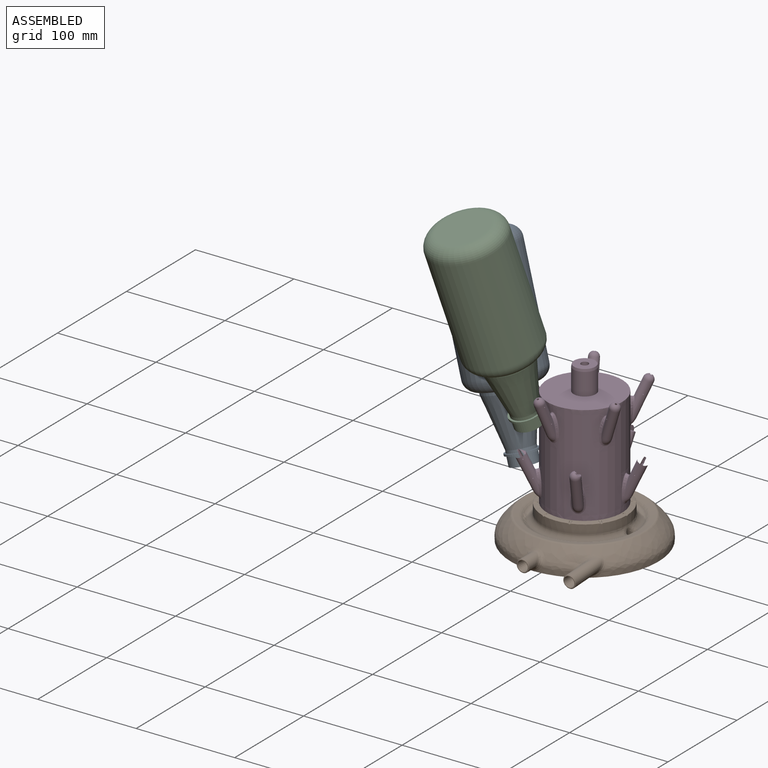
[diagram: assembled view]
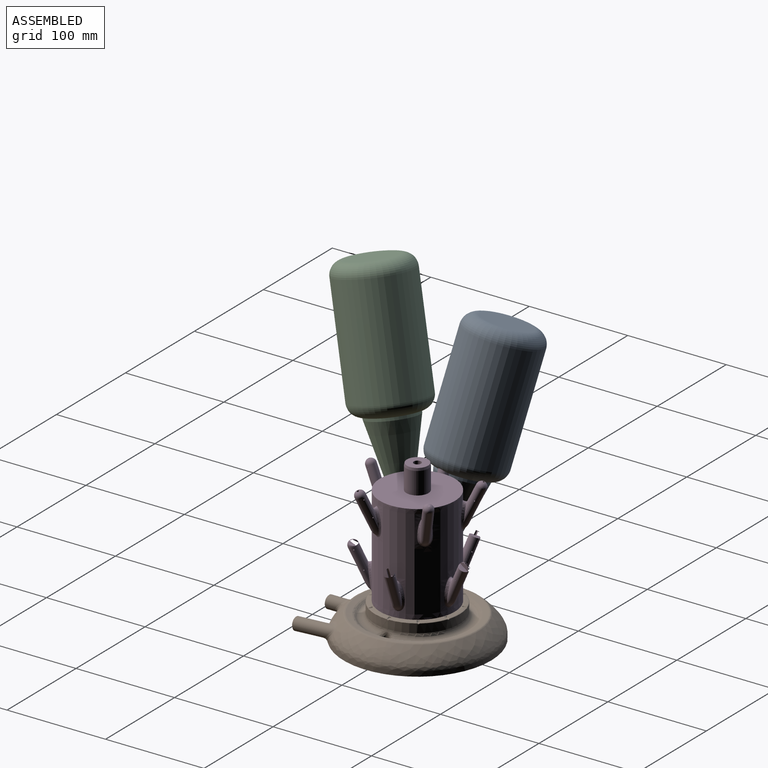
[diagram: assembled view, second angle]
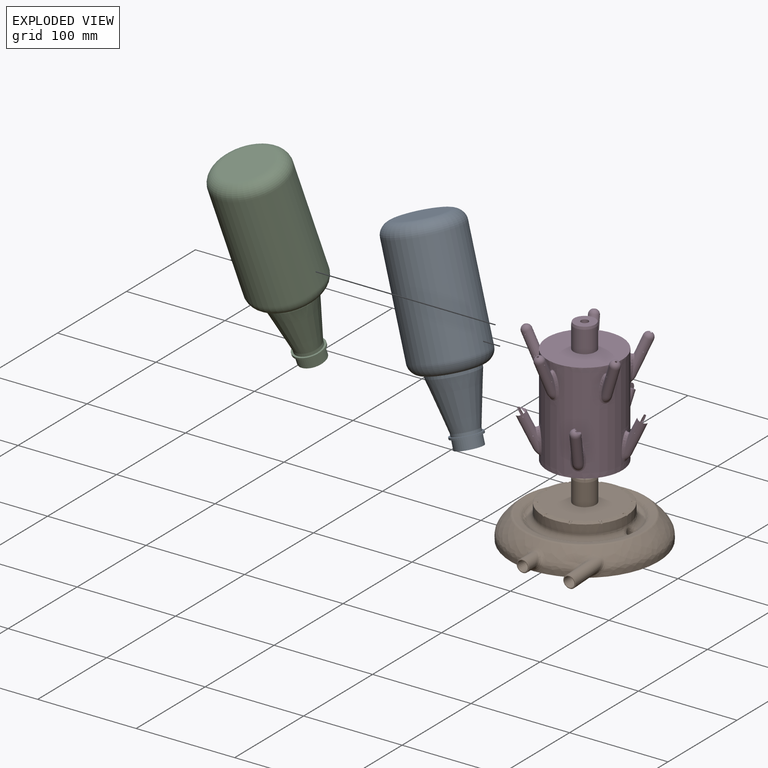
[diagram: exploded view]
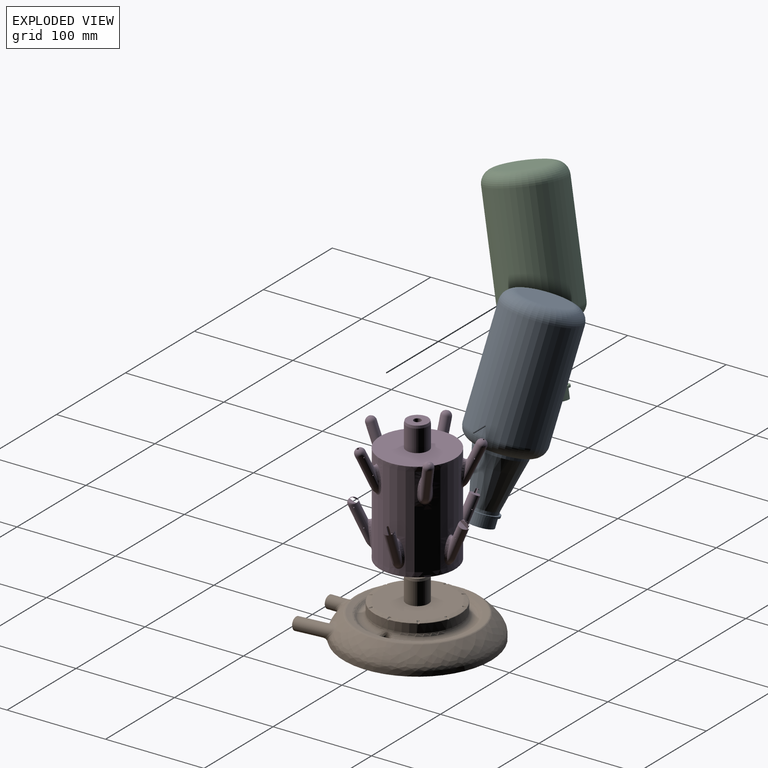
[diagram: exploded view, second angle]
ASSEMBLY  parts=4 mates=2
PART A: 19 faces, bbox 81.2x81.2x200 mm
  f0: cylinder r=13.5mm len=27mm, axis (0,0,-1), area 848.2mm2, adj f1,f18
  f1: plane 27x27mm, normal (0,0,1), area 81.7mm2, adj f0,f2
  f2: cylinder r=12.5mm len=25mm, axis (0,0,-1), area 1187.1mm2, adj f1,f3
  f3: cone r=12.5mm half-angle=13.1deg, axis (0,0,-1), area 5827.2mm2, adj f2,f4
  f4: cylinder r=24mm len=48mm, axis (0,0,-1), area 592.5mm2, adj f3,f5
  f5: torus R=25mm, axis (0,0,-1), area 3822.6mm2, adj f4,f6
  f6: cylinder r=36.5mm len=107.5mm, axis (0,0,-1), area 24653.6mm2, adj f5,f7
  f7: torus R=25mm, axis (0,0,-1), area 3668.5mm2, adj f6,f8
  f8: plane 50x50mm, normal (0,0,1), area 1963.5mm2, adj f7
  f9: plane 50x50mm, normal (0,0,-1), area 1963.5mm2, adj f10
  f10: torus R=25mm, axis (0,0,-1), area 4066mm2, adj f9,f11
  f11: cylinder r=37.5mm len=107.5mm, axis (0,0,-1), area 25329.1mm2, adj f10,f12
  f12: torus R=25mm, axis (0,0,-1), area 4066mm2, adj f11,f13
  f13: cylinder r=25mm len=50mm, axis (0,0,-1), area 471.2mm2, adj f12,f14
  f14: cone r=13.5mm half-angle=13.1deg, axis (0,0,-1), area 6146.5mm2, adj f13,f15
  f15: cylinder r=13.5mm len=27mm, axis (0,0,-1), area 254.5mm2, adj f14,f16
  f16: plane 31x31mm, normal (0,0,-1), area 182.2mm2, adj f15,f17
  f17: cylinder r=15.5mm len=31mm, axis (0,0,-1), area 194.8mm2, adj f16,f18
  f18: plane 31x31mm, normal (0,0,1), area 182.2mm2, adj f0,f17
PART B: 161 faces, bbox 150.3x165.6x61 mm
  f0: bspline ~24.91x18.47mm, area 15.8mm2, adj f13,f26,f143,f158
  f1: bspline ~27.4x2.61mm, area 15.9mm2, adj f13,f26,f132,f147
  f2: bspline ~24.98x18.36mm, area 15.8mm2, adj f13,f26,f121,f136
  f3: bspline ~26.71x8.58mm, area 15.9mm2, adj f13,f26,f110,f125
  f4: bspline ~26.87x9.01mm, area 15.9mm2, adj f13,f26,f99,f114
  f5: bspline ~25.28x17.94mm, area 15.8mm2, adj f13,f26,f88,f103
  f6: bspline ~30.81x3.55mm, area 15.9mm2, adj f13,f26,f77,f92
  f7: bspline ~24.6x18.89mm, area 15.8mm2, adj f13,f26,f71,f81
  f8: bspline ~23.02x7.78mm, area 15.9mm2, adj f13,f26,f55,f67
  f9: cylinder r=3.75mm len=5.17mm, axis (0,0,-1), area 14.1mm2, adj f32,f47
  f10: cylinder r=75mm len=150mm, axis (0,0,-1), area 2031.8mm2, adj f12,f14,f38,f45
  f11: cylinder r=75mm len=33.06mm, axis (0,0,-1), area 152.9mm2, adj f12,f14,f41,f42
  f12: bspline ~149.92x149.85mm, area 9553.6mm2, adj f10,f11,f29,f39,f43
  f13: bspline ~150x150mm, area 1074.5mm2, adj f0,f1,f2,f3,f4,f5,f6,f7
  f14: plane 150.27x150.27mm, normal (0,0,-1), area 17671.5mm2, adj f10,f11,f40,f44
  f15: plane 76.2x76.2mm, normal (0,0,1), area 4162.5mm2, adj f13,f16
  f16: cylinder r=11.25mm len=22.5mm, axis (0,0,-1), area 1590.4mm2, adj f15,f18
  f17: plane 21.5x21.5mm, normal (0,0,1), area 318.9mm2, adj f18,f19
  f18: cone r=10.75mm half-angle=11.3deg, axis (0,0,-1), area 176.2mm2, adj f16,f17
  f19: cylinder r=3.75mm len=30mm, axis (0,0,-1), area 706.9mm2, adj f17,f20
  f20: torus R=20mm, axis (-1,0,0), area 740.2mm2, adj f19,f21
  f21: cylinder r=3.75mm len=60mm, axis (0,-1,0), area 1413.7mm2, adj f20,f24
  f22: plane 11.7x11.7mm, normal (0,-1,0), area 20.9mm2, adj f24,f25
  f23: cylinder r=6.35mm len=18.1mm, axis (0,-1,0), area 505.6mm2, adj f25,f42,f43,f44,f45
  f24: cone r=3.75mm half-angle=8.5deg, axis (0,-1,0), area 285.9mm2, adj f21,f22
  f25: cone r=5.85mm half-angle=45deg, axis (0,1,0), area 27.1mm2, adj f22,f23
  f26: cylinder r=43.1mm len=86.2mm, axis (0,0,1), area 2379.4mm2, adj f0,f1,f2,f3,f4,f5,f6,f7
  f27: torus R=48.1mm, axis (0,0,1), area 3320.4mm2, adj f26,f30,f46,f47,f48,f49
  f28: bspline ~119.49x119.43mm, area 2006.4mm2, adj f29,f30
  f29: bspline ~123.72x123.7mm, area 838mm2, adj f12,f28
  f30: bspline ~108.47x108.42mm, area 995.3mm2, adj f27,f28,f48
  f31: cylinder r=3.75mm len=4.39mm, axis (0,0,-1), area 0mm2, adj f32,f48
  f32: torus R=5mm, axis (-1,0,0), area 172mm2, adj f9,f31,f33,f46,f49
  f33: cylinder r=3.75mm len=75.67mm, axis (0,-1,-0.05), area 1776.1mm2, adj f32,f37
  f34: plane 11.7x11.68mm, normal (0,-1,-0.05), area 20.9mm2, adj f36,f37
  f35: cylinder r=6.35mm len=41.46mm, axis (0,-1,-0.05), area 1174.2mm2, adj f36,f38,f39,f40,f41
  f36: cone r=5.85mm half-angle=45deg, axis (0,1,0.05), area 27.1mm2, adj f34,f35
  f37: cone r=3.75mm half-angle=8.5deg, axis (0,-1,-0.05), area 285.9mm2, adj f33,f34
  f38: bspline ~9.14x8.62mm, area 33.6mm2, adj f10,f35,f39,f40
  f39: bspline ~24.65x21.41mm, area 216mm2, adj f12,f35,f38,f41
  f40: bspline ~13.28x12.65mm, area 81.1mm2, adj f14,f35,f38,f41
  f41: bspline ~9.83x8.91mm, area 44.9mm2, adj f11,f35,f39,f40
  f42: bspline ~9.22x8.42mm, area 37.5mm2, adj f11,f23,f43,f44
  f43: bspline ~21.37x13mm, area 192.1mm2, adj f12,f23,f42,f45
  f44: bspline ~11.8x5.4mm, area 50.4mm2, adj f14,f23,f42,f45
  f45: bspline ~9.08x8.22mm, area 37.5mm2, adj f10,f23,f43,f44
  f46: bspline ~7.11x6.08mm, area 35.6mm2, adj f27,f32,f47,f48
  f47: bspline ~13.95x6.55mm, area 38.6mm2, adj f9,f27,f46,f49
  f48: bspline ~10.93x5.07mm, area 28.3mm2, adj f27,f30,f31,f46,f49
  f49: bspline ~7.78x7.03mm, area 44.5mm2, adj f27,f32,f47,f48
  f50: bspline ~29.02x10.73mm, area 15.9mm2, adj f13,f26,f59,f154
  f51: cylinder r=43.1mm len=1.09mm, axis (0,0,1), area 0mm2, adj f53,f58
  f52: cylinder r=1.25mm len=2.99mm, axis (1,0,0), area 7.6mm2, adj f53,f54,f57,f61
  f53: bspline ~2.48x1.16mm, area 1.7mm2, adj f51,f52,f56,f60
  f54: bspline ~4.39x0.96mm, area 1.7mm2, adj f13,f52,f55,f56
  f55: sphere r=0.5mm, area 0.2mm2, adj f8,f54,f57
  f56: bspline ~1.28x1.09mm, area 0.8mm2, adj f13,f53,f54,f58
  f57: bspline ~3.06x1.13mm, area 1.9mm2, adj f26,f52,f55,f59
  f58: bspline ~5.43x0.56mm, area 0.8mm2, adj f13,f51,f56,f60
  f59: sphere r=0.5mm, area 0.2mm2, adj f50,f57,f61
  f60: bspline ~1.28x1.25mm, area 0.8mm2, adj f13,f53,f58,f61
  f61: bspline ~4.39x0.96mm, area 1.7mm2, adj f13,f52,f59,f60
  f62: cylinder r=43.1mm len=0.88mm, axis (0,0,1), area 0mm2, adj f64,f68
  f63: cylinder r=1.25mm len=3.8mm, axis (0.81,-0.59,0), area 7.5mm2, adj f64,f65,f69,f72
  f64: bspline ~2.27x1.84mm, area 1.7mm2, adj f62,f63,f66,f70
  f65: bspline ~3.42x3.17mm, area 1.7mm2, adj f13,f63,f66,f67
  f66: bspline ~1.74x0.91mm, area 0.8mm2, adj f13,f64,f65,f68
  f67: sphere r=0.5mm, area 0.2mm2, adj f8,f65,f69
  f68: bspline ~4.65x3.56mm, area 0.8mm2, adj f13,f62,f66,f70
  f69: bspline ~2.45x1.92mm, area 1.8mm2, adj f26,f63,f67,f71
  f70: bspline ~1.67x0.75mm, area 0.8mm2, adj f13,f64,f68,f72
  f71: sphere r=0.5mm, area 0.2mm2, adj f7,f69,f72
  f72: bspline ~3.88x2.43mm, area 1.7mm2, adj f13,f63,f70,f71
  f73: cylinder r=43.1mm len=1.03mm, axis (0,0,1), area 0mm2, adj f75,f80
  f74: cylinder r=1.25mm len=3.57mm, axis (0.31,-0.95,0), area 7.6mm2, adj f75,f76,f79,f83
  f75: bspline ~2.48x1.24mm, area 1.7mm2, adj f73,f74,f78,f82
  f76: bspline ~3.69x1.9mm, area 1.7mm2, adj f13,f74,f77,f78
  f77: sphere r=0.5mm, area 0.2mm2, adj f6,f76,f79
  f78: bspline ~1.42x1.08mm, area 0.8mm2, adj f13,f75,f76,f80
  f79: bspline ~2.9x1.28mm, area 1.8mm2, adj f26,f74,f77,f81
  f80: bspline ~5.28x2.12mm, area 0.8mm2, adj f13,f73,f78,f82
  f81: sphere r=0.5mm, area 0.2mm2, adj f7,f79,f83
  f82: bspline ~1.57x0.95mm, area 0.8mm2, adj f13,f75,f80,f83
  f83: bspline ~4.29x1.24mm, area 1.7mm2, adj f13,f74,f81,f82
  f84: cylinder r=43.1mm len=1.03mm, axis (0,0,1), area 0mm2, adj f86,f91
  f85: cylinder r=1.25mm len=3.57mm, axis (-0.31,-0.95,0), area 7.6mm2, adj f86,f87,f90,f94
  f86: bspline ~2.48x1.24mm, area 1.7mm2, adj f84,f85,f89,f93
  f87: bspline ~4.29x1.24mm, area 1.7mm2, adj f13,f85,f88,f89
  f88: sphere r=0.5mm, area 0.2mm2, adj f5,f87,f90
  f89: bspline ~1.55x0.85mm, area 0.8mm2, adj f13,f86,f87,f91
  f90: bspline ~2.9x1.28mm, area 1.8mm2, adj f26,f85,f88,f92
  f91: bspline ~3.76x1.56mm, area 0.8mm2, adj f13,f84,f89,f93
  f92: sphere r=0.5mm, area 0.2mm2, adj f6,f90,f94
  f93: bspline ~1.57x1.08mm, area 0.8mm2, adj f13,f86,f91,f94
  f94: bspline ~3.69x1.9mm, area 1.7mm2, adj f13,f85,f92,f93
  f95: cylinder r=43.1mm len=0.88mm, axis (0,0,1), area 0mm2, adj f97,f102
  f96: cylinder r=1.25mm len=3.8mm, axis (-0.81,-0.59,0), area 7.5mm2, adj f97,f98,f101,f105
  f97: bspline ~2.27x1.84mm, area 1.7mm2, adj f95,f96,f100,f104
  f98: bspline ~3.42x3.17mm, area 1.7mm2, adj f13,f96,f99,f100
  f99: sphere r=0.5mm, area 0.2mm2, adj f4,f98,f101
  f100: bspline ~1.63x0.91mm, area 0.8mm2, adj f13,f97,f98,f102
  f101: bspline ~2.45x1.92mm, area 1.8mm2, adj f26,f96,f99,f103
  f102: bspline ~4.65x3.56mm, area 0.8mm2, adj f13,f95,f100,f104
  f103: sphere r=0.5mm, area 0.2mm2, adj f5,f101,f105
  f104: bspline ~1.74x0.76mm, area 0.8mm2, adj f13,f97,f102,f105
  f105: bspline ~3.88x2.43mm, area 1.7mm2, adj f13,f96,f103,f104
  f106: cylinder r=43.1mm len=1.09mm, axis (0,0,1), area 0mm2, adj f108,f113
  f107: cylinder r=1.25mm len=2.99mm, axis (-1,0,0), area 7.6mm2, adj f108,f109,f112,f116
  f108: bspline ~2.44x1.09mm, area 1.7mm2, adj f106,f107,f111,f115
  f109: bspline ~4.39x0.96mm, area 1.7mm2, adj f13,f107,f110,f111
  f110: sphere r=0.5mm, area 0.2mm2, adj f3,f109,f112
  f111: bspline ~1.28x1.09mm, area 0.8mm2, adj f13,f108,f109,f113
  f112: bspline ~3.06x1.13mm, area 1.9mm2, adj f26,f107,f110,f114
  f113: bspline ~5.43x0.56mm, area 0.8mm2, adj f13,f106,f111,f115
  f114: sphere r=0.5mm, area 0.2mm2, adj f4,f112,f116
  f115: bspline ~1.28x1.25mm, area 0.8mm2, adj f13,f108,f113,f116
  f116: bspline ~4.39x0.96mm, area 1.7mm2, adj f13,f107,f114,f115
  f117: cylinder r=43.1mm len=0.88mm, axis (0,0,1), area 0mm2, adj f119,f124
  f118: cylinder r=1.25mm len=3.8mm, axis (-0.81,0.59,0), area 7.5mm2, adj f119,f120,f123,f127
  f119: bspline ~2.27x1.84mm, area 1.7mm2, adj f117,f118,f122,f126
  f120: bspline ~3.88x2.43mm, area 1.7mm2, adj f13,f118,f121,f122
  f121: sphere r=0.5mm, area 0.2mm2, adj f2,f120,f123
  f122: bspline ~1.67x0.75mm, area 0.8mm2, adj f13,f119,f120,f124
  f123: bspline ~2.45x1.92mm, area 1.8mm2, adj f26,f118,f121,f125
  f124: bspline ~4.65x3.56mm, area 0.8mm2, adj f13,f117,f122,f126
  f125: sphere r=0.5mm, area 0.2mm2, adj f3,f123,f127
  f126: bspline ~1.74x0.91mm, area 0.8mm2, adj f13,f119,f124,f127
  f127: bspline ~3.42x3.17mm, area 1.7mm2, adj f13,f118,f125,f126
  f128: cylinder r=43.1mm len=1.03mm, axis (0,0,1), area 0mm2, adj f130,f135
  f129: cylinder r=1.25mm len=3.57mm, axis (-0.31,0.95,0), area 7.6mm2, adj f130,f131,f134,f138
  f130: bspline ~2.48x1.24mm, area 1.7mm2, adj f128,f129,f133,f137
  f131: bspline ~3.69x1.9mm, area 1.7mm2, adj f13,f129,f132,f133
  f132: sphere r=0.5mm, area 0.2mm2, adj f1,f131,f134
  f133: bspline ~1.42x1.08mm, area 0.8mm2, adj f13,f130,f131,f135
  f134: bspline ~2.9x1.28mm, area 1.8mm2, adj f26,f129,f132,f136
  f135: bspline ~5.28x2.12mm, area 0.8mm2, adj f13,f128,f133,f137
  f136: sphere r=0.5mm, area 0.2mm2, adj f2,f134,f138
  f137: bspline ~1.57x0.95mm, area 0.8mm2, adj f13,f130,f135,f138
  f138: bspline ~4.29x1.24mm, area 1.7mm2, adj f13,f129,f136,f137
  f139: cylinder r=43.1mm len=1.03mm, axis (0,0,1), area 0mm2, adj f141,f146
  f140: cylinder r=1.25mm len=3.57mm, axis (0.31,0.95,0), area 7.6mm2, adj f141,f142,f145,f149
  f141: bspline ~2.48x1.24mm, area 1.7mm2, adj f139,f140,f144,f148
  f142: bspline ~4.29x1.24mm, area 1.7mm2, adj f13,f140,f143,f144
  f143: sphere r=0.5mm, area 0.2mm2, adj f0,f142,f145
  f144: bspline ~1.55x0.85mm, area 0.8mm2, adj f13,f141,f142,f146
  f145: bspline ~2.9x1.28mm, area 1.8mm2, adj f26,f140,f143,f147
  f146: bspline ~3.76x1.56mm, area 0.8mm2, adj f13,f139,f144,f148
  f147: sphere r=0.5mm, area 0.2mm2, adj f1,f145,f149
  f148: bspline ~1.57x1.08mm, area 0.8mm2, adj f13,f141,f146,f149
  f149: bspline ~4.1x2.15mm, area 1.7mm2, adj f13,f140,f147,f148
  f150: cylinder r=43.1mm len=0.88mm, axis (0,0,1), area 0mm2, adj f152,f157
  f151: cylinder r=1.25mm len=3.8mm, axis (0.81,0.59,0), area 7.5mm2, adj f152,f153,f156,f160
  f152: bspline ~2.27x1.84mm, area 1.7mm2, adj f150,f151,f155,f159
  f153: bspline ~3.42x3.17mm, area 1.7mm2, adj f13,f151,f154,f155
  f154: sphere r=0.5mm, area 0.2mm2, adj f50,f153,f156
  f155: bspline ~1.63x0.91mm, area 0.8mm2, adj f13,f152,f153,f157
  f156: bspline ~2.45x1.92mm, area 1.8mm2, adj f26,f151,f154,f158
  f157: bspline ~4.65x3.56mm, area 0.8mm2, adj f13,f150,f155,f159
  f158: sphere r=0.5mm, area 0.2mm2, adj f0,f156,f160
  f159: bspline ~1.74x0.76mm, area 0.8mm2, adj f13,f152,f157,f160
  f160: bspline ~3.88x2.43mm, area 1.7mm2, adj f13,f151,f158,f159
PART C: same geometry as A
PART D: 198 faces, bbox 117.6x122.9x131.6 mm
  f0: bspline ~2.28x1.5mm, area 7.9mm2, adj f5,f12
  f1: bspline ~2.28x1.5mm, area 4mm2, adj f3,f12
  f2: bspline ~2.28x1.5mm, area 7.9mm2, adj f4,f12
  f3: cylinder r=0.5mm len=3.32mm, axis (-0.81,-0.59,0), area 10.5mm2, adj f1,f16
  f4: cylinder r=0.5mm len=3.39mm, axis (0.81,0.59,0), area 9.6mm2, adj f2,f16
  f5: cylinder r=0.5mm len=3.39mm, axis (0.81,0.59,0), area 9.6mm2, adj f0,f16
  f6: bspline ~18.76x10.76mm, area 133.6mm2, adj f7,f16,f156
  f7: bspline ~10.75x9.38mm, area 47.3mm2, adj f6,f17,f156
  f8: plane 2.42x2.35mm, normal (-0.25,0.34,0.91), area 1.8mm2, adj f9,f15
  f9: cone r=1.25mm half-angle=2.9deg, axis (0.25,-0.34,-0.91), area 35.4mm2, adj f8,f12
  f10: bspline ~3.5x1.75mm, area 2.9mm2, adj f11,f14,f164
  f11: bspline ~3.51x1.6mm, area 2.9mm2, adj f10,f14,f164
  f12: cylinder r=1.25mm len=32.63mm, axis (-0.25,0.34,0.91), area 264.4mm2, adj f0,f1,f2,f9,f13
  f13: torus R=10mm, axis (0.81,0.59,0), area 194.9mm2, adj f12,f14
  f14: torus R=17mm, axis (-0.81,-0.59,0), area 177.3mm2, adj f10,f11,f13
  f15: sphere r=5mm, area 152.1mm2, adj f8,f16
  f16: cylinder r=5mm len=35.95mm, axis (-0.25,0.34,0.91), area 924.8mm2, adj f3,f4,f5,f6,f15,f17
  f17: torus R=10mm, axis (0.81,0.59,0), area 79.6mm2, adj f7,f16
  f18: bspline ~2.28x1.5mm, area 7.9mm2, adj f23,f30
  f19: bspline ~2.28x1.5mm, area 4mm2, adj f21,f30
  f20: bspline ~2.28x1.5mm, area 7.9mm2, adj f22,f30
  f21: cylinder r=0.5mm len=3.32mm, axis (-0.81,0.59,0), area 10.5mm2, adj f19,f34
  f22: cylinder r=0.5mm len=3.39mm, axis (0.81,-0.59,0), area 9.6mm2, adj f20,f34
  f23: cylinder r=0.5mm len=3.39mm, axis (0.81,-0.59,0), area 9.6mm2, adj f18,f34
  f24: bspline ~18.76x10.76mm, area 133.6mm2, adj f25,f34,f156
  f25: bspline ~10.75x9.51mm, area 47.3mm2, adj f24,f35,f156
  f26: plane 2.42x2.35mm, normal (0.25,0.34,0.91), area 1.8mm2, adj f27,f33
  f27: cone r=1.25mm half-angle=2.9deg, axis (-0.25,-0.34,-0.91), area 35.4mm2, adj f26,f30
  f28: bspline ~3.5x1.6mm, area 2.9mm2, adj f29,f32,f164
  f29: bspline ~3.51x1.75mm, area 2.9mm2, adj f28,f32,f164
  f30: cylinder r=1.25mm len=32.63mm, axis (0.25,0.34,0.91), area 264.4mm2, adj f18,f19,f20,f27,f31
  f31: torus R=10mm, axis (0.81,-0.59,0), area 194.9mm2, adj f30,f32
  f32: torus R=17mm, axis (-0.81,0.59,0), area 177.3mm2, adj f28,f29,f31
  f33: sphere r=5mm, area 152.1mm2, adj f26,f34
  f34: cylinder r=5mm len=35.95mm, axis (0.25,0.34,0.91), area 924.8mm2, adj f21,f22,f23,f24,f33,f35
  f35: torus R=10mm, axis (0.81,-0.59,0), area 79.6mm2, adj f25,f34
  f36: bspline ~2.28x1.65mm, area 7.9mm2, adj f41,f48
  f37: bspline ~2.28x1.65mm, area 4mm2, adj f39,f48
  f38: bspline ~2.28x1.65mm, area 7.9mm2, adj f40,f48
  f39: cylinder r=0.5mm len=3.52mm, axis (0.31,0.95,0), area 10.5mm2, adj f37,f52
  f40: cylinder r=0.5mm len=3.6mm, axis (-0.31,-0.95,0), area 9.6mm2, adj f38,f52
  f41: cylinder r=0.5mm len=3.6mm, axis (-0.31,-0.95,0), area 9.6mm2, adj f36,f52
  f42: bspline ~18.8x12.67mm, area 133.6mm2, adj f43,f52,f156
  f43: bspline ~12.63x9.51mm, area 47.3mm2, adj f42,f53,f156
  f44: plane 2.48x2.29mm, normal (0.4,-0.13,0.91), area 1.8mm2, adj f45,f51
  f45: cone r=1.25mm half-angle=2.9deg, axis (-0.4,0.13,-0.91), area 35.4mm2, adj f44,f48
  f46: bspline ~3.5x1.37mm, area 2.9mm2, adj f47,f50,f164
  f47: bspline ~3.51x1.73mm, area 2.9mm2, adj f46,f50,f164
  f48: cylinder r=1.25mm len=32.63mm, axis (0.4,-0.13,0.91), area 264.4mm2, adj f36,f37,f38,f45,f49
  f49: torus R=10mm, axis (-0.31,-0.95,0), area 194.9mm2, adj f48,f50
  f50: torus R=17mm, axis (0.31,0.95,0), area 177.3mm2, adj f46,f47,f49
  f51: sphere r=5mm, area 152.1mm2, adj f44,f52
  f52: cylinder r=5mm len=35.95mm, axis (0.4,-0.13,0.91), area 924.8mm2, adj f39,f40,f41,f42,f51,f53
  f53: torus R=10mm, axis (-0.31,-0.95,0), area 79.6mm2, adj f43,f52
  f54: bspline ~2.28x1.72mm, area 7.9mm2, adj f59,f66
  f55: bspline ~2.28x1.72mm, area 4mm2, adj f57,f66
  f56: bspline ~2.28x1.72mm, area 7.9mm2, adj f58,f66
  f57: cylinder r=0.5mm len=3.38mm, axis (1,0,0), area 10.5mm2, adj f55,f70
  f58: cylinder r=0.5mm len=3.46mm, axis (-1,0,0), area 9.6mm2, adj f56,f70
  f59: cylinder r=0.5mm len=3.46mm, axis (-1,0,0), area 9.6mm2, adj f54,f70
  f60: bspline ~18.8x13.32mm, area 133.6mm2, adj f61,f70,f156
  f61: bspline ~13.28x9.51mm, area 47.3mm2, adj f60,f71,f156
  f62: plane 2.5x2.27mm, normal (0,-0.42,0.91), area 1.8mm2, adj f63,f69
  f63: cone r=1.25mm half-angle=2.9deg, axis (0,0.42,-0.91), area 35.4mm2, adj f62,f66
  f64: bspline ~3.5x1.55mm, area 2.9mm2, adj f65,f68,f164
  f65: bspline ~3.51x1.55mm, area 2.9mm2, adj f64,f68,f164
  f66: cylinder r=1.25mm len=32.63mm, axis (0,-0.42,0.91), area 264.4mm2, adj f54,f55,f56,f63,f67
  f67: torus R=10mm, axis (-1,0,0), area 194.9mm2, adj f66,f68
  f68: torus R=17mm, axis (1,0,0), area 177.3mm2, adj f64,f65,f67
  f69: sphere r=5mm, area 152.1mm2, adj f62,f70
  f70: cylinder r=5mm len=35.95mm, axis (0,-0.42,0.91), area 924.8mm2, adj f57,f58,f59,f60,f69,f71
  f71: torus R=10mm, axis (-1,0,0), area 79.6mm2, adj f61,f70
  f72: plane 10.01x9.42mm, normal (0,0,-1), area 40.7mm2, adj f91,f159,f164,f165
  f73: bspline ~1.98x1.51mm, area 2.8mm2, adj f78,f85
  f74: bspline ~1.97x1.51mm, area 2.8mm2, adj f76,f85
  f75: bspline ~1.98x1.51mm, area 2.8mm2, adj f77,f85
  f76: cylinder r=0.5mm len=3.68mm, axis (-0.31,0.95,0), area 10.6mm2, adj f74,f89
  f77: cylinder r=0.5mm len=3.68mm, axis (0.31,-0.95,0), area 10.6mm2, adj f75,f89
  f78: cylinder r=0.5mm len=3.68mm, axis (0.31,-0.95,0), area 10.6mm2, adj f73,f89
  f79: bspline ~3.51x1.73mm, area 2.9mm2, adj f80,f87,f164
  f80: bspline ~3.5x1.37mm, area 2.9mm2, adj f79,f87,f164
  f81: bspline ~18.8x12.67mm, area 134.2mm2, adj f82,f89,f156
  f82: bspline ~12.63x9.51mm, area 47.3mm2, adj f81,f90,f156
  f83: plane 2.23x2.22mm, normal (0.4,0.13,0.91), area -3.1mm2, adj f84,f88
  f84: cone r=1.25mm half-angle=2.9deg, axis (-0.4,-0.13,-0.91), area 35.4mm2, adj f83,f85
  f85: cylinder r=1.25mm len=32.63mm, axis (0.4,0.13,0.91), area 266.2mm2, adj f73,f74,f75,f84,f86
  f86: torus R=10mm, axis (0.31,-0.95,0), area 194.9mm2, adj f85,f87
  f87: torus R=17mm, axis (-0.31,0.95,0), area 177.3mm2, adj f79,f80,f86
  f88: sphere r=5mm, area 152.1mm2, adj f83,f89
  f89: cylinder r=5mm len=35.95mm, axis (0.4,0.13,0.91), area 920.9mm2, adj f76,f77,f78,f81,f88,f90
  f90: torus R=10mm, axis (0.31,-0.95,0), area 79.6mm2, adj f82,f89
  f91: torus R=17mm, axis (-0.31,0.95,0), area 41.6mm2, adj f72,f92,f159
  f92: plane 9.65x7.95mm, normal (0,0,-1), area 40.7mm2, adj f91,f111,f159,f164
  f93: bspline ~1.98x1.35mm, area 2.8mm2, adj f98,f105
  f94: bspline ~1.97x1.35mm, area 2.8mm2, adj f96,f105
  f95: bspline ~1.98x1.35mm, area 2.8mm2, adj f97,f105
  f96: cylinder r=0.5mm len=3.45mm, axis (0.81,0.59,0), area 10.6mm2, adj f94,f109
  f97: cylinder r=0.5mm len=3.46mm, axis (-0.81,-0.59,0), area 10.6mm2, adj f95,f109
  f98: cylinder r=0.5mm len=3.46mm, axis (-0.81,-0.59,0), area 10.6mm2, adj f93,f109
  f99: bspline ~3.51x1.75mm, area 2.9mm2, adj f100,f107,f164
  f100: bspline ~3.5x1.6mm, area 2.9mm2, adj f99,f107,f164
  f101: bspline ~18.8x10.78mm, area 134.2mm2, adj f102,f109,f156
  f102: bspline ~10.75x9.51mm, area 47.3mm2, adj f101,f110,f156
  f103: plane 7.42x7.35mm, normal (0.25,-0.34,0.91), area 1.8mm2, adj f104,f108
  f104: cone r=1.25mm half-angle=2.9deg, axis (-0.25,0.34,-0.91), area 35.4mm2, adj f103,f105
  f105: cylinder r=1.25mm len=32.63mm, axis (0.25,-0.34,0.91), area 266.2mm2, adj f93,f94,f95,f104,f106
  f106: torus R=10mm, axis (-0.81,-0.59,0), area 194.9mm2, adj f105,f107
  f107: torus R=17mm, axis (0.81,0.59,0), area 177.3mm2, adj f99,f100,f106
  f108: sphere r=5mm, area 152.1mm2, adj f103,f109
  f109: cylinder r=5mm len=35.95mm, axis (0.25,-0.34,0.91), area 920.9mm2, adj f96,f97,f98,f101,f108,f110
  f110: torus R=10mm, axis (-0.81,-0.59,0), area 79.6mm2, adj f102,f109
  f111: torus R=17mm, axis (0.81,0.59,0), area 41.6mm2, adj f92,f112,f159
  f112: plane 8.83x6.69mm, normal (0,0,-1), area 40.7mm2, adj f111,f131,f159,f164
  f113: bspline ~1.98x1.35mm, area 2.8mm2, adj f118,f125
  f114: bspline ~1.97x1.35mm, area 2.8mm2, adj f116,f125
  f115: bspline ~1.98x1.35mm, area 2.8mm2, adj f117,f125
  f116: cylinder r=0.5mm len=3.46mm, axis (0.81,-0.59,0), area 10.6mm2, adj f114,f129
  f117: cylinder r=0.5mm len=3.46mm, axis (-0.81,0.59,0), area 10.6mm2, adj f115,f129
  f118: cylinder r=0.5mm len=3.46mm, axis (-0.81,0.59,0), area 10.6mm2, adj f113,f129
  f119: bspline ~3.51x1.6mm, area 2.9mm2, adj f120,f127,f164
  f120: bspline ~3.5x1.75mm, area 2.9mm2, adj f119,f127,f164
  f121: bspline ~18.8x10.78mm, area 134.2mm2, adj f122,f129,f156
  f122: bspline ~10.75x9.51mm, area 47.3mm2, adj f121,f130,f156
  f123: plane 7.42x7.35mm, normal (-0.25,-0.34,0.91), area 1.8mm2, adj f124,f128
  f124: cone r=1.25mm half-angle=2.9deg, axis (0.25,0.34,-0.91), area 35.4mm2, adj f123,f125
  f125: cylinder r=1.25mm len=32.63mm, axis (-0.25,-0.34,0.91), area 266.2mm2, adj f113,f114,f115,f124,f126
  f126: torus R=10mm, axis (-0.81,0.59,0), area 194.9mm2, adj f125,f127
  f127: torus R=17mm, axis (0.81,-0.59,0), area 177.3mm2, adj f119,f120,f126
  f128: sphere r=5mm, area 152.1mm2, adj f123,f129
  f129: cylinder r=5mm len=35.95mm, axis (-0.25,-0.34,0.91), area 921.1mm2, adj f116,f117,f118,f121,f128,f130
  f130: torus R=10mm, axis (-0.81,0.59,0), area 79.6mm2, adj f122,f129
  f131: torus R=17mm, axis (0.81,-0.59,0), area 41.6mm2, adj f112,f132,f159
  f132: plane 9.65x7.95mm, normal (0,0,-1), area 40.7mm2, adj f131,f151,f159,f164
  f133: bspline ~1.98x1.51mm, area 2.8mm2, adj f138,f145
  f134: bspline ~1.97x1.51mm, area 2.8mm2, adj f136,f145
  f135: bspline ~1.98x1.51mm, area 2.8mm2, adj f137,f145
  f136: cylinder r=0.5mm len=3.68mm, axis (-0.31,-0.95,0), area 10.6mm2, adj f134,f149
  f137: cylinder r=0.5mm len=3.68mm, axis (0.31,0.95,0), area 10.6mm2, adj f135,f149
  f138: cylinder r=0.5mm len=3.68mm, axis (0.31,0.95,0), area 10.6mm2, adj f133,f149
  f139: bspline ~3.51x1.37mm, area 2.9mm2, adj f140,f147,f164
  f140: bspline ~3.5x1.73mm, area 2.9mm2, adj f139,f147,f164
  f141: bspline ~18.8x12.67mm, area 134.2mm2, adj f142,f149,f156
  f142: bspline ~12.63x9.51mm, area 47.3mm2, adj f141,f150,f156
  f143: plane 7.23x7.22mm, normal (-0.4,0.13,0.91), area -3.1mm2, adj f144
  f144: cone r=1.25mm half-angle=2.9deg, axis (0.4,-0.13,-0.91), area 35.4mm2, adj f143,f145
  f145: cylinder r=1.25mm len=32.63mm, axis (-0.4,0.13,0.91), area 266.2mm2, adj f133,f134,f135,f144,f146
  f146: torus R=10mm, axis (0.31,0.95,0), area 194.9mm2, adj f145,f147
  f147: torus R=17mm, axis (-0.31,-0.95,0), area 177.3mm2, adj f139,f140,f146
  f148: sphere r=5mm, area 152.1mm2, adj f149
  f149: cylinder r=5mm len=35.95mm, axis (-0.4,0.13,0.91), area 921.1mm2, adj f136,f137,f138,f141,f148,f150
  f150: torus R=10mm, axis (0.31,0.95,0), area 79.6mm2, adj f142,f149
  f151: torus R=17mm, axis (-0.31,-0.95,0), area 41.6mm2, adj f132,f159,f160
  f152: cylinder r=5mm len=35.95mm, axis (-0.4,-0.13,0.91), area 924.8mm2, adj f182,f183,f190,f192,f193,f194
  f153: cylinder r=1.25mm len=32.63mm, axis (-0.4,-0.13,0.91), area 264.4mm2, adj f185,f189,f195,f196,f197
  f154: cylinder r=5mm len=35.95mm, axis (0,0.42,0.91), area 921.1mm2, adj f166,f167,f172,f176,f177,f178
  f155: cylinder r=1.25mm len=32.63mm, axis (0,0.42,0.91), area 266.2mm2, adj f169,f171,f179,f180,f181
  f156: extruded ~101.6x76.2mm, area 21343.7mm2, adj f6,f7,f24,f25,f42,f43,f60,f61
  f157: plane 76.2x76.2mm, normal (0,0,1), area 4162.5mm2, adj f156,f161
  f158: plane 76.2x76.2mm, normal (0,0,-1), area 4144.6mm2, adj f156,f159
  f159: cylinder r=11.5mm len=26mm, axis (0,0,-1), area 1878.7mm2, adj f72,f91,f92,f111,f112,f131,f132,f151
  f160: plane 10.01x9.42mm, normal (0,0,-1), area 40.7mm2, adj f151,f159,f164,f165
  f161: cylinder r=11.25mm len=22.5mm, axis (0,0,-1), area 1590.4mm2, adj f157,f163
  f162: plane 21.5x21.5mm, normal (0,0,1), area 318.9mm2, adj f163,f164
  f163: cone r=10.75mm half-angle=11.3deg, axis (0,0,-1), area 176.2mm2, adj f161,f162
  f164: cylinder r=3.75mm len=100.6mm, axis (0,0,-1), area 2283.5mm2, adj f10,f11,f28,f29,f46,f47,f64,f65
  f165: torus R=17mm, axis (-1,0,0), area 41.6mm2, adj f72,f159,f160
  f166: torus R=10mm, axis (1,0,0), area 79.6mm2, adj f154,f173
  f167: sphere r=5mm, area 152.1mm2, adj f154,f170
  f168: torus R=17mm, axis (-1,0,0), area 177.3mm2, adj f169,f174,f175
  f169: torus R=10mm, axis (1,0,0), area 194.9mm2, adj f155,f168
  f170: plane 2.5x2.27mm, normal (0,0.42,0.91), area 1.8mm2, adj f167,f171
  f171: cone r=1.25mm half-angle=2.9deg, axis (0,-0.42,-0.91), area 35.4mm2, adj f155,f170
  f172: bspline ~18.8x13.32mm, area 134.2mm2, adj f154,f156,f173
  f173: bspline ~13.28x9.51mm, area 47.3mm2, adj f156,f166,f172
  f174: bspline ~3.51x1.55mm, area 2.9mm2, adj f164,f168,f175
  f175: bspline ~3.5x1.55mm, area 2.9mm2, adj f164,f168,f174
  f176: cylinder r=0.5mm len=3.55mm, axis (1,0,0), area 10.6mm2, adj f154,f179
  f177: cylinder r=0.5mm len=3.55mm, axis (1,0,0), area 10.6mm2, adj f154,f181
  f178: cylinder r=0.5mm len=3.54mm, axis (-1,0,0), area 10.6mm2, adj f154,f180
  f179: bspline ~1.98x1.58mm, area 2.8mm2, adj f155,f176
  f180: bspline ~1.97x1.58mm, area 2.8mm2, adj f155,f178
  f181: bspline ~1.98x1.58mm, area 2.8mm2, adj f155,f177
  f182: torus R=10mm, axis (-0.31,0.95,0), area 79.6mm2, adj f152,f191
  f183: sphere r=5mm, area 152.1mm2, adj f152,f188
  f184: torus R=17mm, axis (0.31,-0.95,0), area 177.3mm2, adj f185,f186,f187
  f185: torus R=10mm, axis (-0.31,0.95,0), area 194.9mm2, adj f153,f184
  f186: bspline ~3.5x1.73mm, area 2.9mm2, adj f164,f184,f187
  f187: bspline ~3.51x1.37mm, area 2.9mm2, adj f164,f184,f186
  f188: plane 2.48x2.29mm, normal (-0.4,-0.13,0.91), area 1.8mm2, adj f183,f189
  f189: cone r=1.25mm half-angle=2.9deg, axis (0.4,0.13,-0.91), area 35.4mm2, adj f153,f188
  f190: bspline ~18.8x12.67mm, area 133.6mm2, adj f152,f156,f191
  f191: bspline ~12.63x9.51mm, area 47.3mm2, adj f156,f182,f190
  f192: cylinder r=0.5mm len=3.6mm, axis (-0.31,0.95,0), area 9.6mm2, adj f152,f195
  f193: cylinder r=0.5mm len=3.6mm, axis (-0.31,0.95,0), area 9.6mm2, adj f152,f197
  f194: cylinder r=0.5mm len=3.52mm, axis (0.31,-0.95,0), area 10.5mm2, adj f152,f196
  f195: bspline ~2.28x1.65mm, area 7.9mm2, adj f153,f192
  f196: bspline ~2.28x1.65mm, area 4mm2, adj f153,f194
  f197: bspline ~2.28x1.65mm, area 7.9mm2, adj f153,f193
PLACE A rot(axis=(0.63,0.78,0.06),161.3deg) t=(-116.08,16.37,218.64)mm
PLACE B t=(0.45,6.97,-29.94)mm fixed
PLACE C rot(axis=(-0.74,-0.65,-0.15),174.6deg) t=(-60.85,-81.88,273.64)mm
PLACE D rot(axis=(0,0,-1),81.2deg) t=(0.45,6.97,-29.94)mm
MATE cylindrical D.f161 <-> B.f16  axis (0,0,1) through (0.45,6.97,106.66)mm
MATE planar D.f159 <-> B.f19  axis (0,0,-1) through (0.45,6.97,5.06)mm
